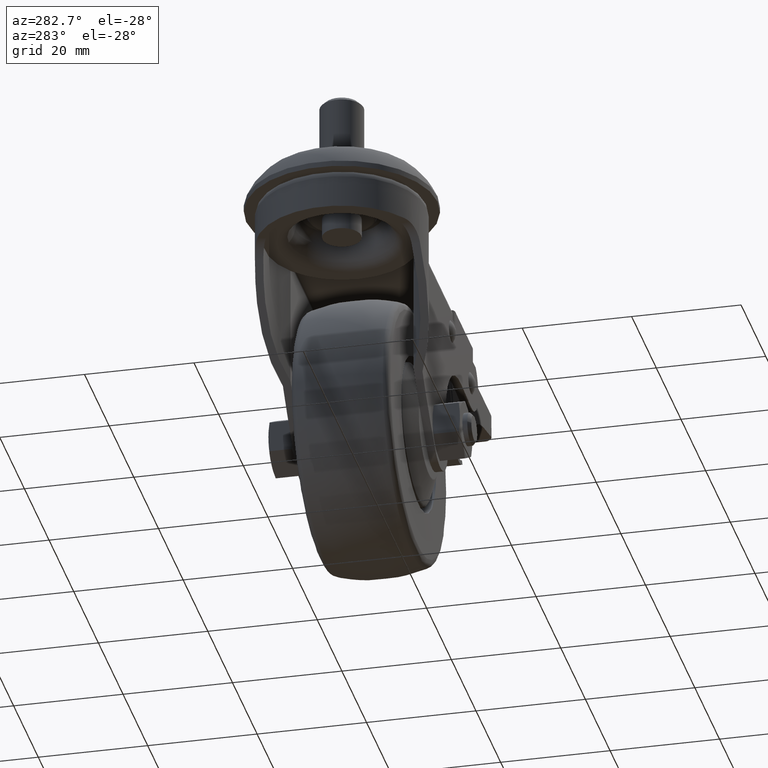
[diagram: clean part render]
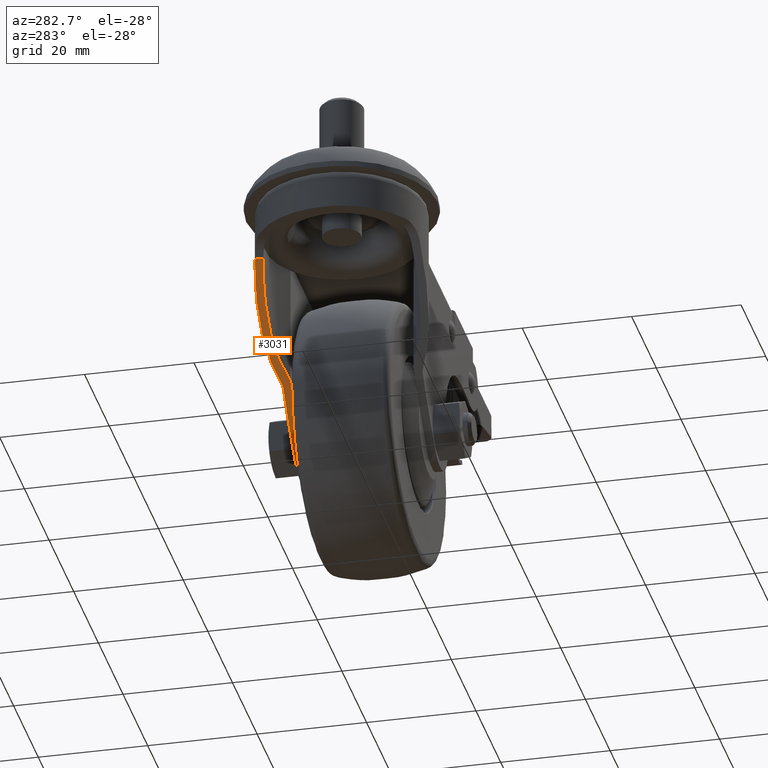
[diagram: same view with one face highlighted and labeled with its STEP entity id]
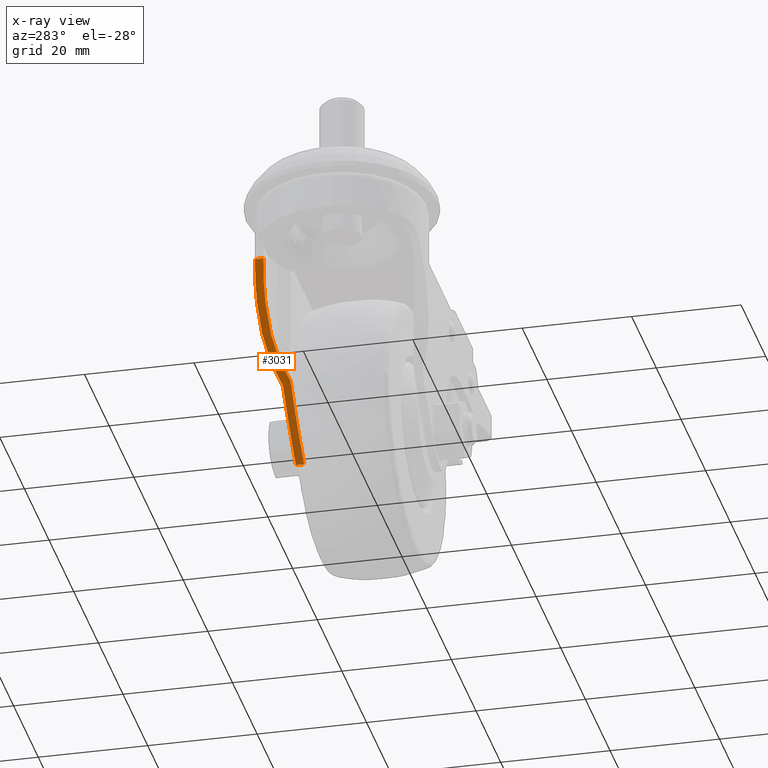
[diagram: x-ray of the same camera — body ghosted, the highlighted face saturated]
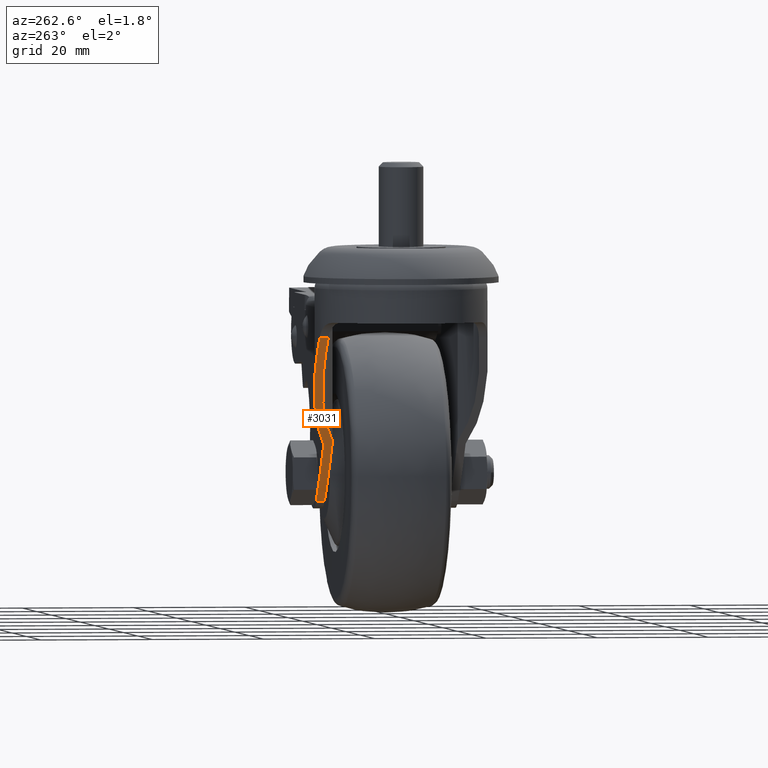
[diagram: same view with one face highlighted and labeled with its STEP entity id]
A machine part, auxiliary view. The second image highlights one B-rep face of the part: STEP entity #3031.
The next image is the same camera in x-ray: the body ghosted, the highlighted face saturated — about 15% of this face is hidden behind the body in this view.
A second angle (auxiliary view) of the same face is appended — the face is thin or edge-on in the first view.
In plain terms, the highlighted cylindrical surface (partial cylindrical patch) has radius 86 mm, axis along (0.0001, -1, -0).
Its self-contained STEP definition (entity closure, byte-faithful):
#63=B_SPLINE_CURVE_WITH_KNOTS('',3,(#5451,#5452,#5453,#5454,#5455,#5456,
#5457,#5458),.UNSPECIFIED.,.F.,.F.,(4,2,2,4),(7.50723795275818,7.87011571431067,
8.84858561020786,9.04460924753542),.UNSPECIFIED.);
#64=B_SPLINE_CURVE_WITH_KNOTS('',3,(#5463,#5464,#5465,#5466),
 .UNSPECIFIED.,.F.,.F.,(4,4),(9.04460924753542,9.78884174720651),
 .UNSPECIFIED.);
#68=B_SPLINE_CURVE_WITH_KNOTS('',3,(#5658,#5659,#5660,#5661,#5662,#5663,
#5664,#5665,#5666,#5667),.UNSPECIFIED.,.F.,.F.,(4,2,2,2,4),(-12.9601077986611,
-12.7550120382271,-12.1221323783075,-11.4892527183879,-10.7773168755484),
 .UNSPECIFIED.);
#258=LINE('',#5584,#419);
#279=LINE('',#5647,#440);
#419=VECTOR('',#4354,1000.);
#440=VECTOR('',#4415,1000.);
#508=CYLINDRICAL_SURFACE('',#3584,85.9999999999993);
#765=FACE_OUTER_BOUND('',#973,.T.);
#973=EDGE_LOOP('',(#2638,#2639,#2640,#2641,#2642,#2643,#2644));
#1140=CIRCLE('',#3524,85.9999999999993);
#1174=CIRCLE('',#3585,85.9999999999993);
#1456=VERTEX_POINT('',#5448);
#1457=VERTEX_POINT('',#5450);
#1459=VERTEX_POINT('',#5462);
#1461=VERTEX_POINT('',#5477);
#1489=VERTEX_POINT('',#5582);
#1503=VERTEX_POINT('',#5646);
#1504=VERTEX_POINT('',#5657);
#1826=EDGE_CURVE('',#1456,#1457,#63,.T.);
#1829=EDGE_CURVE('',#1457,#1459,#64,.T.);
#1832=EDGE_CURVE('',#1461,#1456,#1140,.F.);
#1870=EDGE_CURVE('',#1461,#1489,#258,.T.);
#1898=EDGE_CURVE('',#1459,#1503,#279,.T.);
#1900=EDGE_CURVE('',#1504,#1503,#68,.T.);
#1901=EDGE_CURVE('',#1489,#1504,#1174,.F.);
#2638=ORIENTED_EDGE('',*,*,#1900,.T.);
#2639=ORIENTED_EDGE('',*,*,#1898,.F.);
#2640=ORIENTED_EDGE('',*,*,#1829,.F.);
#2641=ORIENTED_EDGE('',*,*,#1826,.F.);
#2642=ORIENTED_EDGE('',*,*,#1832,.F.);
#2643=ORIENTED_EDGE('',*,*,#1870,.T.);
#2644=ORIENTED_EDGE('',*,*,#1901,.T.);
#3031=ADVANCED_FACE('',(#765),#508,.T.);
#3524=AXIS2_PLACEMENT_3D('',#5479,#4264,#4265);
#3584=AXIS2_PLACEMENT_3D('',#5656,#4416,#4417);
#3585=AXIS2_PLACEMENT_3D('',#5668,#4418,#4419);
#4264=DIRECTION('center_axis',(0.,0.,-1.));
#4265=DIRECTION('ref_axis',(-1.,0.,0.));
#4354=DIRECTION('',(0.,0.,-1.));
#4415=DIRECTION('',(0.,0.,-1.));
#4416=DIRECTION('center_axis',(0.,0.,-1.));
#4417=DIRECTION('ref_axis',(-1.,0.,0.));
#4418=DIRECTION('center_axis',(0.,0.,-1.));
#4419=DIRECTION('ref_axis',(-1.,0.,0.));
#5448=CARTESIAN_POINT('',(13.1859487180979,5.47293876926751,12.75));
#5450=CARTESIAN_POINT('',(21.9999999997639,18.0284523786404,15.5));
#5451=CARTESIAN_POINT('Ctrl Pts',(13.1859487180979,5.47293876926755,12.75));
#5452=CARTESIAN_POINT('Ctrl Pts',(13.9487364752535,6.37602291560747,13.2773137575511));
#5453=CARTESIAN_POINT('Ctrl Pts',(14.7093155463396,7.31582454584583,13.7009363418397));
#5454=CARTESIAN_POINT('Ctrl Pts',(17.3442261216821,10.7104514471153,14.9358517219685));
#5455=CARTESIAN_POINT('Ctrl Pts',(19.2208768214591,13.4121871741349,15.3488781294759));
#5456=CARTESIAN_POINT('Ctrl Pts',(21.3164807107336,16.8583829408911,15.4888888460719));
#5457=CARTESIAN_POINT('Ctrl Pts',(21.6610869788579,17.4403047046904,15.4999999999897));
#5458=CARTESIAN_POINT('Ctrl Pts',(21.9999999995277,18.0284523786404,15.5));
#5462=CARTESIAN_POINT('',(25.5882097250245,24.9657567713356,15.0789505924398));
#5463=CARTESIAN_POINT('Ctrl Pts',(21.9999999995277,18.0284523786404,15.5));
#5464=CARTESIAN_POINT('Ctrl Pts',(23.2867330077653,20.2614413157252,15.5000000000392));
#5465=CARTESIAN_POINT('Ctrl Pts',(24.4906455757758,22.5846178337322,15.3401286054606));
#5466=CARTESIAN_POINT('Ctrl Pts',(25.5882097250245,24.9657567713356,15.0789505924398));
#5477=CARTESIAN_POINT('',(2.66690643386661,-4.99630666106634,12.75));
#5479=CARTESIAN_POINT('Origin',(-52.5140477633581,60.9662758678468,12.75));
#5582=CARTESIAN_POINT('',(2.66690643386661,-4.99630666106634,11.25));
#5584=CARTESIAN_POINT('',(2.66690643386661,-4.99630666106634,50.));
#5646=CARTESIAN_POINT('',(25.5882097250245,24.9657567713356,13.5323594014215));
#5647=CARTESIAN_POINT('',(25.5882097250245,24.9657567713356,50.));
#5656=CARTESIAN_POINT('Origin',(-52.5140477633581,60.9662758678468,50.));
#5657=CARTESIAN_POINT('',(13.6670833437505,6.04762798405792,11.25));
#5658=CARTESIAN_POINT('Ctrl Pts',(13.6670833437505,6.04762798405796,11.25));
#5659=CARTESIAN_POINT('Ctrl Pts',(14.0953256967301,6.56369246124851,11.5672006965382));
#5660=CARTESIAN_POINT('Ctrl Pts',(14.5203813045024,7.08865478974189,11.8435183543119));
#5661=CARTESIAN_POINT('Ctrl Pts',(16.1494513277151,9.14683986653093,12.7986405660415));
#5662=CARTESIAN_POINT('Ctrl Pts',(17.4847391073466,10.9526304957886,13.3165761943598));
#5663=CARTESIAN_POINT('Ctrl Pts',(20.0356062178147,14.7305471603906,13.9233591083324));
#5664=CARTESIAN_POINT('Ctrl Pts',(21.2501365252545,16.70235087417,14.0186058555415));
#5665=CARTESIAN_POINT('Ctrl Pts',(23.4616184001372,20.6013250424942,13.9726483723392));
#5666=CARTESIAN_POINT('Ctrl Pts',(24.5669137685218,22.7500798375453,13.8031639207624));
#5667=CARTESIAN_POINT('Ctrl Pts',(25.5882097250245,24.9657567713356,13.5323594014215));
#5668=CARTESIAN_POINT('Origin',(-52.5140477633581,60.9662758678468,11.25));